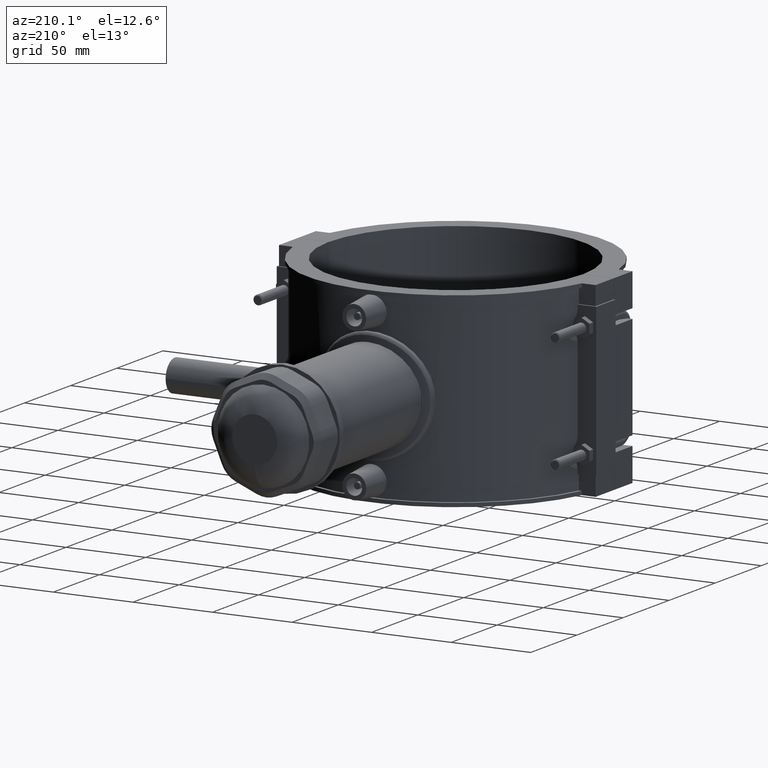
[diagram: clean part render]
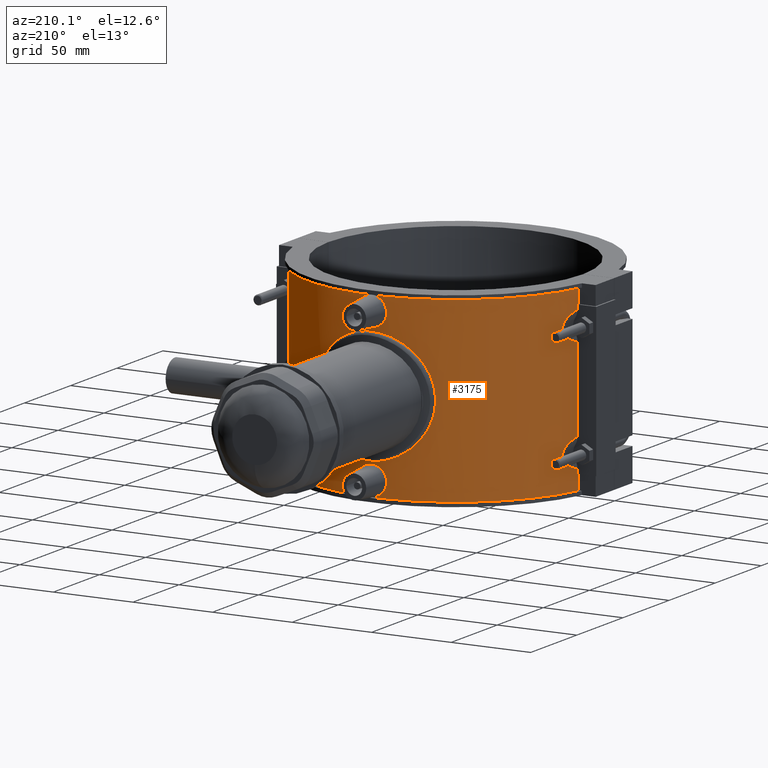
[diagram: same view with one face highlighted and labeled with its STEP entity id]
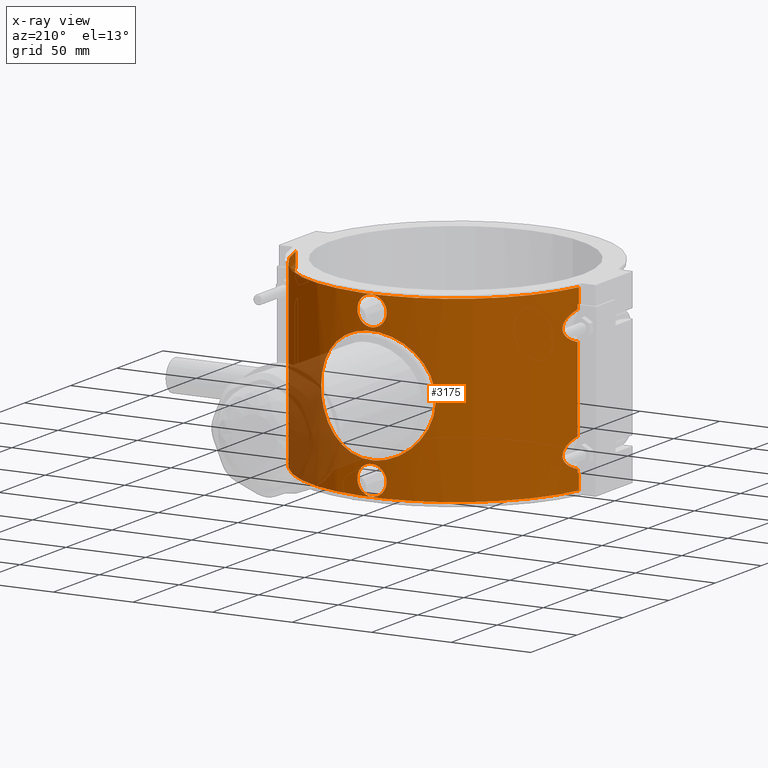
[diagram: x-ray of the same camera — body ghosted, the highlighted face saturated]
A machine part, auxiliary view. The second image highlights one B-rep face of the part: STEP entity #3175.
The next image is the same camera in x-ray: the body ghosted, the highlighted face saturated — about 12% of this face is hidden behind the body in this view.
In plain terms, the highlighted cylindrical surface (partial cylindrical patch) has radius 91.2 mm, axis along (0, 0, 1).
Its self-contained STEP definition (entity closure, byte-faithful):
#62=LINE('',#4548,#345);
#214=LINE('',#5558,#497);
#224=LINE('',#5584,#507);
#225=LINE('',#5585,#508);
#226=LINE('',#5586,#509);
#243=LINE('',#5815,#526);
#246=LINE('',#5819,#529);
#247=LINE('',#5820,#530);
#255=LINE('',#5914,#538);
#256=LINE('',#5916,#539);
#345=VECTOR('',#3576,9.43999999999998);
#497=VECTOR('',#4012,9.43999999999998);
#507=VECTOR('',#4040,2.6837622247576);
#508=VECTOR('',#4041,52.5675244495152);
#509=VECTOR('',#4042,2.6837622247576);
#526=VECTOR('',#4089,2.6837622247576);
#529=VECTOR('',#4092,2.6837622247576);
#530=VECTOR('',#4093,52.5675244495152);
#538=VECTOR('',#4121,9.43999999999998);
#539=VECTOR('',#4124,9.43999999999998);
#760=FACE_BOUND('',#1233,.T.);
#761=FACE_BOUND('',#1234,.T.);
#762=FACE_BOUND('',#1235,.T.);
#833=CIRCLE('',#3397,91.2);
#835=CIRCLE('',#3401,91.2);
#838=CIRCLE('',#3419,91.2);
#839=CIRCLE('',#3421,91.2);
#842=CIRCLE('',#3427,91.2);
#843=CIRCLE('',#3428,91.2);
#1007=FACE_OUTER_BOUND('',#1232,.T.);
#1232=EDGE_LOOP('',(#2711,#2712,#2713,#2714,#2715,#2716,#2717,#2718,#2719,
#2720,#2721,#2722,#2723,#2724,#2725,#2726,#2727,#2728,#2729,#2730));
#1233=EDGE_LOOP('',(#2731));
#1234=EDGE_LOOP('',(#2732));
#1235=EDGE_LOOP('',(#2733));
#1322=B_SPLINE_CURVE_WITH_KNOTS('',3,(#5047,#5048,#5049,#5050,#5051,#5052,
#5053,#5054,#5055,#5056,#5057,#5058,#5059),.UNSPECIFIED.,.F.,.F.,(4,1,1,
1,1,1,1,1,1,1,4),(-3.66790656687898,-3.25082827320278,-2.83374997952657,
-2.41667168585037,-2.20813253901227,-1.99959339217417,-1.89532381875512,
-1.79105424533607,-1.58251509849797,-1.16543680482177,-0.748358511145565),
 .UNSPECIFIED.);
#1334=B_SPLINE_CURVE_WITH_KNOTS('',3,(#5336,#5337,#5338,#5339,#5340,#5341,
#5342,#5343,#5344,#5345,#5346,#5347,#5348,#5349,#5350,#5351,#5352,#5353,
#5354,#5355,#5356,#5357,#5358,#5359,#5360,#5361,#5362,#5363,#5364,#5365,
#5366,#5367,#5368,#5369),.UNSPECIFIED.,.T.,.F.,(4,2,2,2,2,2,2,2,2,2,2,2,
2,2,2,2,4),(0.,0.346065054083076,0.692130108166152,1.03704234345026,1.38195457873437,
1.72686681401849,2.0717790493026,2.41784410338567,2.76390915746875,3.10957379604714,
3.45523843462554,3.80055069679235,4.14586295895917,4.49117522112599,4.8364874832928,
5.1821521218712,5.52781676044959),.UNSPECIFIED.);
#1335=B_SPLINE_CURVE_WITH_KNOTS('',3,(#5390,#5391,#5392,#5393,#5394,#5395,
#5396,#5397,#5398,#5399,#5400,#5401,#5402,#5403,#5404,#5405,#5406,#5407,
#5408,#5409,#5410,#5411,#5412,#5413,#5414,#5415,#5416,#5417,#5418,#5419,
#5420,#5421,#5422,#5423),.UNSPECIFIED.,.T.,.F.,(4,2,2,2,2,2,2,2,2,2,2,2,
2,2,2,2,4),(0.,0.346065054083076,0.692130108166152,1.03704234345026,1.38195457873438,
1.72686681401849,2.0717790493026,2.41784410338567,2.76390915746875,3.10957379604714,
3.45523843462554,3.80055069679235,4.14586295895917,4.49117522112599,4.8364874832928,
5.1821521218712,5.52781676044959),.UNSPECIFIED.);
#1339=B_SPLINE_CURVE_WITH_KNOTS('',3,(#5535,#5536,#5537,#5538,#5539,#5540,
#5541,#5542,#5543,#5544,#5545,#5546,#5547),.UNSPECIFIED.,.F.,.F.,(4,1,1,
1,1,1,1,1,1,1,4),(-3.66752498455638,-3.25044670413885,-2.83336842372132,
-2.41629014330378,-2.20775100309501,-1.99921186288625,-1.89494229278186,
-1.79067272267748,-1.58213358246871,-1.16505530205118,-0.747977021633643),
 .UNSPECIFIED.);
#1343=B_SPLINE_CURVE_WITH_KNOTS('',3,(#5689,#5690,#5691,#5692,#5693,#5694,
#5695,#5696,#5697,#5698,#5699,#5700,#5701),.UNSPECIFIED.,.F.,.F.,(4,1,1,
1,1,1,1,1,1,1,4),(-3.66828220279289,-3.25120389611031,-2.83412558942772,
-2.62558643608643,-2.52131685941578,-2.41704728274514,-2.20850812940385,
-1.99996897606255,-1.58289066937997,-1.16581236269738,-0.748734056014795),
 .UNSPECIFIED.);
#1347=B_SPLINE_CURVE_WITH_KNOTS('',3,(#5786,#5787,#5788,#5789,#5790,#5791,
#5792,#5793,#5794,#5795,#5796,#5797,#5798),.UNSPECIFIED.,.F.,.F.,(4,1,1,
1,1,1,1,1,1,1,4),(-3.66828220203314,-3.25120389535557,-2.834125588678,-2.41704728200043,
-2.20850812866164,-1.99996897532286,-1.89569939865347,-1.79142982198407,
-1.58289066864529,-1.16581236196772,-0.74873405529015),.UNSPECIFIED.);
#1349=B_SPLINE_CURVE_WITH_KNOTS('',3,(#5918,#5919,#5920,#5921,#5922,#5923,
#5924,#5925,#5926,#5927,#5928,#5929,#5930,#5931,#5932,#5933,#5934,#5935,
#5936,#5937,#5938,#5939,#5940,#5941,#5942,#5943,#5944,#5945,#5946,#5947,
#5948,#5949,#5950,#5951,#5952,#5953,#5954,#5955,#5956,#5957,#5958,#5959,
#5960,#5961,#5962,#5963,#5964,#5965,#5966,#5967,#5968,#5969,#5970,#5971,
#5972,#5973,#5974,#5975,#5976,#5977,#5978,#5979,#5980,#5981,#5982,#5983),
 .UNSPECIFIED.,.T.,.F.,(4,2,2,2,2,2,2,2,2,2,2,2,2,2,2,2,2,2,2,2,2,2,2,2,
2,2,2,2,2,2,2,2,4),(0.,0.686545125668625,1.37309025133725,2.05963537700587,
2.7461805026745,3.43206983416835,4.1179591656622,4.80384849715604,5.48973782864989,
6.17562716014374,6.86151649163759,7.54740582313144,8.23329515462529,8.91984028029391,
9.60638540596253,10.2929305316312,10.9794756572998,11.6660207829684,12.352565908637,
13.0391110343057,13.7256561599743,14.4115454914681,15.097434822962,15.7833241544558,
16.4692134859497,17.1551028174435,17.8409921489374,18.5268814804312,19.2127708119251,
19.8993159375937,20.5858610632623,21.2724061889309,21.9589513145996),
 .UNSPECIFIED.);
#1381=VERTEX_POINT('',#4545);
#1382=VERTEX_POINT('',#4547);
#1475=VERTEX_POINT('',#5038);
#1476=VERTEX_POINT('',#5046);
#1528=VERTEX_POINT('',#5335);
#1535=VERTEX_POINT('',#5389);
#1543=VERTEX_POINT('',#5506);
#1546=VERTEX_POINT('',#5528);
#1549=VERTEX_POINT('',#5555);
#1550=VERTEX_POINT('',#5557);
#1553=VERTEX_POINT('',#5566);
#1556=VERTEX_POINT('',#5577);
#1557=VERTEX_POINT('',#5579);
#1562=VERTEX_POINT('',#5660);
#1565=VERTEX_POINT('',#5682);
#1566=VERTEX_POINT('',#5756);
#1569=VERTEX_POINT('',#5779);
#1573=VERTEX_POINT('',#5814);
#1574=VERTEX_POINT('',#5817);
#1575=VERTEX_POINT('',#5822);
#1583=VERTEX_POINT('',#5911);
#1584=VERTEX_POINT('',#5913);
#1585=VERTEX_POINT('',#5917);
#1683=EDGE_CURVE('',#1381,#1382,#62,.T.);
#1809=EDGE_CURVE('',#1475,#1476,#1322,.T.);
#1889=EDGE_CURVE('',#1528,#1528,#1334,.T.);
#1896=EDGE_CURVE('',#1535,#1535,#1335,.T.);
#1913=EDGE_CURVE('',#1546,#1543,#1339,.T.);
#1918=EDGE_CURVE('',#1550,#1549,#214,.T.);
#1923=EDGE_CURVE('',#1549,#1553,#833,.T.);
#1929=EDGE_CURVE('',#1557,#1556,#835,.T.);
#1932=EDGE_CURVE('',#1475,#1557,#224,.T.);
#1933=EDGE_CURVE('',#1546,#1476,#225,.T.);
#1934=EDGE_CURVE('',#1553,#1543,#226,.T.);
#1948=EDGE_CURVE('',#1565,#1562,#1343,.T.);
#1953=EDGE_CURVE('',#1569,#1566,#1347,.T.);
#1961=EDGE_CURVE('',#1573,#1566,#243,.T.);
#1964=EDGE_CURVE('',#1565,#1574,#246,.T.);
#1965=EDGE_CURVE('',#1569,#1562,#247,.T.);
#1966=EDGE_CURVE('',#1574,#1575,#838,.T.);
#1968=EDGE_CURVE('',#1381,#1573,#839,.T.);
#1978=EDGE_CURVE('',#1583,#1382,#842,.T.);
#1979=EDGE_CURVE('',#1584,#1575,#255,.T.);
#1980=EDGE_CURVE('',#1584,#1550,#843,.T.);
#1981=EDGE_CURVE('',#1556,#1583,#256,.T.);
#1982=EDGE_CURVE('',#1585,#1585,#1349,.T.);
#2711=ORIENTED_EDGE('',*,*,#1978,.T.);
#2712=ORIENTED_EDGE('',*,*,#1683,.F.);
#2713=ORIENTED_EDGE('',*,*,#1968,.T.);
#2714=ORIENTED_EDGE('',*,*,#1961,.T.);
#2715=ORIENTED_EDGE('',*,*,#1953,.F.);
#2716=ORIENTED_EDGE('',*,*,#1965,.T.);
#2717=ORIENTED_EDGE('',*,*,#1948,.F.);
#2718=ORIENTED_EDGE('',*,*,#1964,.T.);
#2719=ORIENTED_EDGE('',*,*,#1966,.T.);
#2720=ORIENTED_EDGE('',*,*,#1979,.F.);
#2721=ORIENTED_EDGE('',*,*,#1980,.T.);
#2722=ORIENTED_EDGE('',*,*,#1918,.T.);
#2723=ORIENTED_EDGE('',*,*,#1923,.T.);
#2724=ORIENTED_EDGE('',*,*,#1934,.T.);
#2725=ORIENTED_EDGE('',*,*,#1913,.F.);
#2726=ORIENTED_EDGE('',*,*,#1933,.T.);
#2727=ORIENTED_EDGE('',*,*,#1809,.F.);
#2728=ORIENTED_EDGE('',*,*,#1932,.T.);
#2729=ORIENTED_EDGE('',*,*,#1929,.T.);
#2730=ORIENTED_EDGE('',*,*,#1981,.T.);
#2731=ORIENTED_EDGE('',*,*,#1982,.T.);
#2732=ORIENTED_EDGE('',*,*,#1889,.T.);
#2733=ORIENTED_EDGE('',*,*,#1896,.T.);
#3032=CYLINDRICAL_SURFACE('',#3426,91.2);
#3175=ADVANCED_FACE('',(#1007,#760,#761,#762),#3032,.T.);
#3397=AXIS2_PLACEMENT_3D('',#5568,#4022,#4023);
#3401=AXIS2_PLACEMENT_3D('',#5580,#4034,#4035);
#3419=AXIS2_PLACEMENT_3D('',#5823,#4096,#4097);
#3421=AXIS2_PLACEMENT_3D('',#5826,#4101,#4102);
#3426=AXIS2_PLACEMENT_3D('',#5910,#4117,#4118);
#3427=AXIS2_PLACEMENT_3D('',#5912,#4119,#4120);
#3428=AXIS2_PLACEMENT_3D('',#5915,#4122,#4123);
#3576=DIRECTION('',(0.,0.,-1.));
#4012=DIRECTION('',(0.,0.,-1.));
#4022=DIRECTION('center_axis',(0.,0.,1.));
#4023=DIRECTION('ref_axis',(1.,0.,0.));
#4034=DIRECTION('center_axis',(0.,0.,-1.));
#4035=DIRECTION('ref_axis',(1.,0.,0.));
#4040=DIRECTION('',(0.,0.,-1.));
#4041=DIRECTION('',(0.,0.,-1.));
#4042=DIRECTION('',(0.,0.,-1.));
#4089=DIRECTION('',(0.,0.,1.));
#4092=DIRECTION('',(0.,0.,1.));
#4093=DIRECTION('',(0.,0.,1.));
#4096=DIRECTION('center_axis',(0.,0.,1.));
#4097=DIRECTION('ref_axis',(1.,0.,0.));
#4101=DIRECTION('center_axis',(0.,0.,-1.));
#4102=DIRECTION('ref_axis',(1.,0.,0.));
#4117=DIRECTION('center_axis',(0.,0.,1.));
#4118=DIRECTION('ref_axis',(1.,0.,0.));
#4119=DIRECTION('center_axis',(0.,0.,1.));
#4120=DIRECTION('ref_axis',(1.,0.,0.));
#4121=DIRECTION('',(0.,0.,-1.));
#4122=DIRECTION('center_axis',(0.,0.,-1.));
#4123=DIRECTION('ref_axis',(1.,0.,0.));
#4124=DIRECTION('',(0.,0.,-1.));
#4545=CARTESIAN_POINT('',(-88.9799977523039,20.0000000000001,-47.2));
#4547=CARTESIAN_POINT('',(-88.9799977523038,20.,-56.64));
#4548=CARTESIAN_POINT('',(-88.9799977523039,20.,0.));
#5038=CARTESIAN_POINT('',(88.7493098564717,20.9999999999999,-44.5162377752424));
#5046=CARTESIAN_POINT('',(88.7493098564717,20.9999999999999,-26.2837622247576));
#5047=CARTESIAN_POINT('Ctrl Pts',(88.7493098564716,20.9999999999998,-44.5162377752424));
#5048=CARTESIAN_POINT('Ctrl Pts',(88.4149610985497,22.4130105484257,-44.096805594623));
#5049=CARTESIAN_POINT('Ctrl Pts',(87.6880282422707,25.1778863008158,-43.0979999331056));
#5050=CARTESIAN_POINT('Ctrl Pts',(86.5191529875693,28.9202770076708,-40.9324876111118));
#5051=CARTESIAN_POINT('Ctrl Pts',(85.6624056223097,31.3024402068319,-38.1834840623287));
#5052=CARTESIAN_POINT('Ctrl Pts',(85.4450161242982,31.8828233802715,-35.3965843784854));
#5053=CARTESIAN_POINT('Ctrl Pts',(85.5804054869423,31.5211844154478,-33.6649494543955));
#5054=CARTESIAN_POINT('Ctrl Pts',(85.808657968559,30.8938156951858,-32.4114546738169));
#5055=CARTESIAN_POINT('Ctrl Pts',(86.0964993859236,30.0864759569152,-31.2576986115477));
#5056=CARTESIAN_POINT('Ctrl Pts',(86.7095182786285,28.3065864901469,-29.5140871907144));
#5057=CARTESIAN_POINT('Ctrl Pts',(87.6915419574416,25.1700257100879,-27.6977673293898));
#5058=CARTESIAN_POINT('Ctrl Pts',(88.4149610985496,22.4130105484257,-26.703194405377));
#5059=CARTESIAN_POINT('Ctrl Pts',(88.7493098564716,20.9999999999998,-26.2837622247577));
#5335=CARTESIAN_POINT('',(9.18535871939005,90.7362616884569,-47.2));
#5336=CARTESIAN_POINT('Ctrl Pts',(9.18535871939005,90.7362616884569,-47.2));
#5337=CARTESIAN_POINT('Ctrl Pts',(9.18535871939005,90.7362616884569,-46.0464498197231));
#5338=CARTESIAN_POINT('Ctrl Pts',(8.95271060001911,90.7607479368476,-44.8172530720308));
#5339=CARTESIAN_POINT('Ctrl Pts',(8.00941505919708,90.8488506341557,-42.5592810057039));
#5340=CARTESIAN_POINT('Ctrl Pts',(7.29884239188916,90.9111644020812,-41.5304238181904));
#5341=CARTESIAN_POINT('Ctrl Pts',(5.66508973086934,91.0275518498036,-39.9110715030919));
#5342=CARTESIAN_POINT('Ctrl Pts',(4.63386079845111,91.0892061742376,-39.2111731607874));
#5343=CARTESIAN_POINT('Ctrl Pts',(2.37619622321046,91.1760376342106,-38.2832359769919));
#5344=CARTESIAN_POINT('Ctrl Pts',(1.14970745094704,91.2,-38.0552131257126));
#5345=CARTESIAN_POINT('Ctrl Pts',(-1.14970745094704,91.2,-38.0552131257126));
#5346=CARTESIAN_POINT('Ctrl Pts',(-2.37619622321046,91.1760376342106,-38.2832359769919));
#5347=CARTESIAN_POINT('Ctrl Pts',(-4.63386079845111,91.0892061742376,-39.2111731607874));
#5348=CARTESIAN_POINT('Ctrl Pts',(-5.66508973086934,91.0275518498036,-39.9110715030919));
#5349=CARTESIAN_POINT('Ctrl Pts',(-7.29884239188916,90.9111644020812,-41.5304238181904));
#5350=CARTESIAN_POINT('Ctrl Pts',(-8.00941505919708,90.8488506341557,-42.5592810057039));
#5351=CARTESIAN_POINT('Ctrl Pts',(-8.95271060001911,90.7607479368476,-44.8172530720308));
#5352=CARTESIAN_POINT('Ctrl Pts',(-9.18535871939005,90.7362616884569,-46.0464498197231));
#5353=CARTESIAN_POINT('Ctrl Pts',(-9.18535871939005,90.7362616884569,-48.352215461928));
#5354=CARTESIAN_POINT('Ctrl Pts',(-8.95324403729757,90.7606900825598,-49.5800841296841));
#5355=CARTESIAN_POINT('Ctrl Pts',(-8.01194907454096,90.8486219657987,-51.8360347071785));
#5356=CARTESIAN_POINT('Ctrl Pts',(-7.30284350220761,90.9108281977478,-52.864198165275));
#5357=CARTESIAN_POINT('Ctrl Pts',(-5.67049896938736,91.0272172622692,-54.4849679392758));
#5358=CARTESIAN_POINT('Ctrl Pts',(-4.63856343325106,91.0889794944252,-55.1863216568089));
#5359=CARTESIAN_POINT('Ctrl Pts',(-2.37886109944089,91.1759808049367,-56.1162391747394));
#5360=CARTESIAN_POINT('Ctrl Pts',(-1.15104087388939,91.2,-56.3447868742874));
#5361=CARTESIAN_POINT('Ctrl Pts',(1.15104087388939,91.2,-56.3447868742874));
#5362=CARTESIAN_POINT('Ctrl Pts',(2.37886109944089,91.1759808049367,-56.1162391747394));
#5363=CARTESIAN_POINT('Ctrl Pts',(4.63856343325106,91.0889794944252,-55.1863216568089));
#5364=CARTESIAN_POINT('Ctrl Pts',(5.67049896938736,91.0272172622692,-54.4849679392758));
#5365=CARTESIAN_POINT('Ctrl Pts',(7.30284350220761,90.9108281977478,-52.864198165275));
#5366=CARTESIAN_POINT('Ctrl Pts',(8.01194907454096,90.8486219657987,-51.8360347071784));
#5367=CARTESIAN_POINT('Ctrl Pts',(8.95324403729757,90.7606900825598,-49.5800841296841));
#5368=CARTESIAN_POINT('Ctrl Pts',(9.18535871939005,90.7362616884569,-48.352215461928));
#5369=CARTESIAN_POINT('Ctrl Pts',(9.18535871939005,90.7362616884569,-47.2));
#5389=CARTESIAN_POINT('',(9.18535871939005,90.7362616884569,47.2));
#5390=CARTESIAN_POINT('Ctrl Pts',(-9.18535871939005,90.7362616884569,47.2));
#5391=CARTESIAN_POINT('Ctrl Pts',(-9.18535871939005,90.7362616884569,46.0464498197231));
#5392=CARTESIAN_POINT('Ctrl Pts',(-8.95271060001911,90.7607479368476,44.8172530720308));
#5393=CARTESIAN_POINT('Ctrl Pts',(-8.00941505919708,90.8488506341557,42.5592810057039));
#5394=CARTESIAN_POINT('Ctrl Pts',(-7.29884239188916,90.9111644020812,41.5304238181904));
#5395=CARTESIAN_POINT('Ctrl Pts',(-5.66508973086935,91.0275518498036,39.9110715030919));
#5396=CARTESIAN_POINT('Ctrl Pts',(-4.63386079845111,91.0892061742376,39.2111731607874));
#5397=CARTESIAN_POINT('Ctrl Pts',(-2.37619622321046,91.1760376342106,38.2832359769919));
#5398=CARTESIAN_POINT('Ctrl Pts',(-1.14970745094704,91.2,38.0552131257126));
#5399=CARTESIAN_POINT('Ctrl Pts',(1.14970745094704,91.2,38.0552131257126));
#5400=CARTESIAN_POINT('Ctrl Pts',(2.37619622321046,91.1760376342106,38.2832359769919));
#5401=CARTESIAN_POINT('Ctrl Pts',(4.63386079845112,91.0892061742376,39.2111731607874));
#5402=CARTESIAN_POINT('Ctrl Pts',(5.66508973086935,91.0275518498036,39.9110715030919));
#5403=CARTESIAN_POINT('Ctrl Pts',(7.29884239188916,90.9111644020812,41.5304238181904));
#5404=CARTESIAN_POINT('Ctrl Pts',(8.00941505919708,90.8488506341557,42.5592810057039));
#5405=CARTESIAN_POINT('Ctrl Pts',(8.95271060001911,90.7607479368476,44.8172530720308));
#5406=CARTESIAN_POINT('Ctrl Pts',(9.18535871939005,90.7362616884569,46.0464498197231));
#5407=CARTESIAN_POINT('Ctrl Pts',(9.18535871939005,90.7362616884569,48.352215461928));
#5408=CARTESIAN_POINT('Ctrl Pts',(8.95324403729757,90.7606900825598,49.5800841296841));
#5409=CARTESIAN_POINT('Ctrl Pts',(8.01194907454095,90.8486219657987,51.8360347071784));
#5410=CARTESIAN_POINT('Ctrl Pts',(7.30284350220761,90.9108281977478,52.864198165275));
#5411=CARTESIAN_POINT('Ctrl Pts',(5.67049896938736,91.0272172622692,54.4849679392758));
#5412=CARTESIAN_POINT('Ctrl Pts',(4.63856343325106,91.0889794944252,55.1863216568089));
#5413=CARTESIAN_POINT('Ctrl Pts',(2.3788610994409,91.1759808049367,56.1162391747394));
#5414=CARTESIAN_POINT('Ctrl Pts',(1.15104087388939,91.2,56.3447868742874));
#5415=CARTESIAN_POINT('Ctrl Pts',(-1.15104087388938,91.2,56.3447868742874));
#5416=CARTESIAN_POINT('Ctrl Pts',(-2.37886109944089,91.1759808049367,56.1162391747394));
#5417=CARTESIAN_POINT('Ctrl Pts',(-4.63856343325106,91.0889794944252,55.1863216568089));
#5418=CARTESIAN_POINT('Ctrl Pts',(-5.67049896938736,91.0272172622692,54.4849679392758));
#5419=CARTESIAN_POINT('Ctrl Pts',(-7.30284350220761,90.9108281977478,52.864198165275));
#5420=CARTESIAN_POINT('Ctrl Pts',(-8.01194907454096,90.8486219657987,51.8360347071784));
#5421=CARTESIAN_POINT('Ctrl Pts',(-8.95324403729757,90.7606900825598,49.5800841296841));
#5422=CARTESIAN_POINT('Ctrl Pts',(-9.18535871939005,90.7362616884569,48.352215461928));
#5423=CARTESIAN_POINT('Ctrl Pts',(-9.18535871939005,90.7362616884569,47.2));
#5506=CARTESIAN_POINT('',(88.7493098564717,20.9999999999999,44.5162377752424));
#5528=CARTESIAN_POINT('',(88.7493098564717,20.9999999999999,26.2837622247576));
#5535=CARTESIAN_POINT('Ctrl Pts',(88.7493098564716,20.9999999999998,26.2837622247576));
#5536=CARTESIAN_POINT('Ctrl Pts',(88.4149611650864,22.4130102672308,26.7031943219082));
#5537=CARTESIAN_POINT('Ctrl Pts',(87.6880281127537,25.1778867747982,27.7020002347816));
#5538=CARTESIAN_POINT('Ctrl Pts',(86.5191529289145,28.9202771409652,29.8675125804049));
#5539=CARTESIAN_POINT('Ctrl Pts',(85.6624055404448,31.3024404085867,32.6165161958967));
#5540=CARTESIAN_POINT('Ctrl Pts',(85.4450160933639,31.8828234478234,35.4034157393931));
#5541=CARTESIAN_POINT('Ctrl Pts',(85.5804054544134,31.5211844964487,37.1350505984411));
#5542=CARTESIAN_POINT('Ctrl Pts',(85.8086579307241,30.8938157915859,38.3885453381319));
#5543=CARTESIAN_POINT('Ctrl Pts',(86.0964993346629,30.0864760996624,39.5423013659968));
#5544=CARTESIAN_POINT('Ctrl Pts',(86.7095182095769,28.3065866754566,41.2859127627844));
#5545=CARTESIAN_POINT('Ctrl Pts',(87.6915418476083,25.1700261338185,43.1022325374696));
#5546=CARTESIAN_POINT('Ctrl Pts',(88.4149611650864,22.4130102672308,44.0968056780918));
#5547=CARTESIAN_POINT('Ctrl Pts',(88.7493098564716,20.9999999999998,44.5162377752424));
#5555=CARTESIAN_POINT('',(88.9799977523039,20.0000000000001,47.2));
#5557=CARTESIAN_POINT('',(88.9799977523039,20.,56.64));
#5558=CARTESIAN_POINT('',(88.9799977523039,20.,0.));
#5566=CARTESIAN_POINT('',(88.7493098564715,21.0000000000001,47.2));
#5568=CARTESIAN_POINT('Origin',(0.,0.,47.2));
#5577=CARTESIAN_POINT('',(88.9799977523039,20.0000000000001,-47.2));
#5579=CARTESIAN_POINT('',(88.7493098564715,21.0000000000001,-47.2));
#5580=CARTESIAN_POINT('Origin',(0.,0.,-47.2));
#5584=CARTESIAN_POINT('',(88.7493098564715,21.0000000000001,0.));
#5585=CARTESIAN_POINT('',(88.7493098564715,21.0000000000001,0.));
#5586=CARTESIAN_POINT('',(88.7493098564715,21.0000000000001,0.));
#5660=CARTESIAN_POINT('',(-88.7493098564717,20.9999999999999,26.2837622247576));
#5682=CARTESIAN_POINT('',(-88.7493098564717,20.9999999999999,44.5162377752424));
#5689=CARTESIAN_POINT('Ctrl Pts',(-88.7493098564716,20.9999999999998,44.5162377752423));
#5690=CARTESIAN_POINT('Ctrl Pts',(-88.4149610330286,22.4130108253278,44.0968055124285));
#5691=CARTESIAN_POINT('Ctrl Pts',(-87.6915420860673,25.1700252569293,43.1022328863481));
#5692=CARTESIAN_POINT('Ctrl Pts',(-86.7095183161227,28.3065863803371,41.2859130197395));
#5693=CARTESIAN_POINT('Ctrl Pts',(-86.0964994057748,30.0864758920522,39.5423015932371));
#5694=CARTESIAN_POINT('Ctrl Pts',(-85.8086579672407,30.893815693674,38.3885455088886));
#5695=CARTESIAN_POINT('Ctrl Pts',(-85.5804054683343,31.5211844573247,37.1350507091815));
#5696=CARTESIAN_POINT('Ctrl Pts',(-85.4450160840051,31.8828234820182,35.4034157396783));
#5697=CARTESIAN_POINT('Ctrl Pts',(-85.6624055693633,31.3024403212867,32.6165160158946));
#5698=CARTESIAN_POINT('Ctrl Pts',(-86.5191530161485,28.9202769511961,29.8675123198506));
#5699=CARTESIAN_POINT('Ctrl Pts',(-87.6880283530886,25.1778858777117,27.7019998930204));
#5700=CARTESIAN_POINT('Ctrl Pts',(-88.4149610330286,22.4130108253279,26.7031944875715));
#5701=CARTESIAN_POINT('Ctrl Pts',(-88.7493098564716,20.9999999999998,26.2837622247576));
#5756=CARTESIAN_POINT('',(-88.7493098564717,20.9999999999999,-44.5162377752424));
#5779=CARTESIAN_POINT('',(-88.7493098564717,20.9999999999999,-26.2837622247576));
#5786=CARTESIAN_POINT('Ctrl Pts',(-88.7493098564716,20.9999999999998,-26.2837622247576));
#5787=CARTESIAN_POINT('Ctrl Pts',(-88.4149610321497,22.4130108290423,-26.7031944886741));
#5788=CARTESIAN_POINT('Ctrl Pts',(-87.6880283524837,25.1778858795364,-27.7019998941576));
#5789=CARTESIAN_POINT('Ctrl Pts',(-86.5191530163603,28.9202769505524,-29.8675123195208));
#5790=CARTESIAN_POINT('Ctrl Pts',(-85.6624055693339,31.302440321372,-32.6165160159839));
#5791=CARTESIAN_POINT('Ctrl Pts',(-85.4450160840425,31.8828234819035,-35.4034157396157));
#5792=CARTESIAN_POINT('Ctrl Pts',(-85.5804054683402,31.5211844573056,-37.1350507092045));
#5793=CARTESIAN_POINT('Ctrl Pts',(-85.8086579672526,30.8938156936346,-38.3885455088592));
#5794=CARTESIAN_POINT('Ctrl Pts',(-86.0964994057414,30.0864758921458,-39.5423015931259));
#5795=CARTESIAN_POINT('Ctrl Pts',(-86.7095183162258,28.3065863800305,-41.2859130199106));
#5796=CARTESIAN_POINT('Ctrl Pts',(-87.691542085464,25.1700252587432,-43.1022328851723));
#5797=CARTESIAN_POINT('Ctrl Pts',(-88.4149610321497,22.4130108290423,-44.096805511326));
#5798=CARTESIAN_POINT('Ctrl Pts',(-88.7493098564716,20.9999999999998,-44.5162377752424));
#5814=CARTESIAN_POINT('',(-88.7493098564715,21.0000000000001,-47.2));
#5815=CARTESIAN_POINT('',(-88.7493098564715,21.0000000000001,0.));
#5817=CARTESIAN_POINT('',(-88.7493098564715,21.0000000000001,47.2));
#5819=CARTESIAN_POINT('',(-88.7493098564715,21.0000000000001,0.));
#5820=CARTESIAN_POINT('',(-88.7493098564715,21.0000000000001,0.));
#5822=CARTESIAN_POINT('',(-88.9799977523039,20.0000000000001,47.2));
#5823=CARTESIAN_POINT('Origin',(0.,0.,47.2));
#5826=CARTESIAN_POINT('Origin',(0.,0.,-47.2));
#5910=CARTESIAN_POINT('Origin',(0.,0.,0.));
#5911=CARTESIAN_POINT('',(88.9799977523039,20.,-56.64));
#5912=CARTESIAN_POINT('Origin',(0.,0.,-56.64));
#5913=CARTESIAN_POINT('',(-88.9799977523038,20.,56.64));
#5914=CARTESIAN_POINT('',(-88.9799977523039,20.,0.));
#5915=CARTESIAN_POINT('Origin',(0.,0.,56.64));
#5916=CARTESIAN_POINT('',(88.9799977523039,20.,0.));
#5917=CARTESIAN_POINT('',(36.,83.7940332004612,0.));
#5918=CARTESIAN_POINT('Ctrl Pts',(36.,83.7940332004612,0.));
#5919=CARTESIAN_POINT('Ctrl Pts',(36.,83.7940332004612,2.28848375222875));
#5920=CARTESIAN_POINT('Ctrl Pts',(35.7782887978466,83.8904342023092,4.64588694301195));
#5921=CARTESIAN_POINT('Ctrl Pts',(34.8546532313024,84.2783723591541,9.31790553277572));
#5922=CARTESIAN_POINT('Ctrl Pts',(34.1530286011665,84.5694446341323,11.6326187719137));
#5923=CARTESIAN_POINT('Ctrl Pts',(32.3089969863221,85.2909661590028,16.0585197891704));
#5924=CARTESIAN_POINT('Ctrl Pts',(31.165128157779,85.7211596850742,18.1737058126692));
#5925=CARTESIAN_POINT('Ctrl Pts',(28.5312190227312,86.6334344901436,22.0798174282098));
#5926=CARTESIAN_POINT('Ctrl Pts',(27.0409117744509,87.1146015822262,23.8707764709805));
#5927=CARTESIAN_POINT('Ctrl Pts',(23.8722905420791,88.0356363061712,27.0393977033523));
#5928=CARTESIAN_POINT('Ctrl Pts',(22.0820581770992,88.5089443739233,28.5295125553873));
#5929=CARTESIAN_POINT('Ctrl Pts',(18.175570321976,89.3929481051351,31.1640662251688));
#5930=CARTESIAN_POINT('Ctrl Pts',(16.0592786454413,89.8028802983963,32.3087075032088));
#5931=CARTESIAN_POINT('Ctrl Pts',(11.6311420538677,90.4830054539145,34.1536171739742));
#5932=CARTESIAN_POINT('Ctrl Pts',(9.31533034190696,90.7532620314227,34.8553518612118));
#5933=CARTESIAN_POINT('Ctrl Pts',(4.64294395213267,91.1118709070611,35.7786808619193));
#5934=CARTESIAN_POINT('Ctrl Pts',(2.28629777164616,91.2,36.));
#5935=CARTESIAN_POINT('Ctrl Pts',(-2.28629777164616,91.2,36.));
#5936=CARTESIAN_POINT('Ctrl Pts',(-4.64294395213267,91.1118709070611,35.7786808619193));
#5937=CARTESIAN_POINT('Ctrl Pts',(-9.31533034190696,90.7532620314227,34.8553518612118));
#5938=CARTESIAN_POINT('Ctrl Pts',(-11.6311420538677,90.4830054539146,34.1536171739742));
#5939=CARTESIAN_POINT('Ctrl Pts',(-16.0592786454413,89.8028802983963,32.3087075032088));
#5940=CARTESIAN_POINT('Ctrl Pts',(-18.175570321976,89.3929481051351,31.1640662251688));
#5941=CARTESIAN_POINT('Ctrl Pts',(-22.0820581770992,88.5089443739233,28.5295125553873));
#5942=CARTESIAN_POINT('Ctrl Pts',(-23.8722905420791,88.0356363061712,27.0393977033523));
#5943=CARTESIAN_POINT('Ctrl Pts',(-27.0409117744509,87.1146015822262,23.8707764709805));
#5944=CARTESIAN_POINT('Ctrl Pts',(-28.5312190227312,86.6334344901436,22.0798174282098));
#5945=CARTESIAN_POINT('Ctrl Pts',(-31.165128157779,85.7211596850742,18.1737058126692));
#5946=CARTESIAN_POINT('Ctrl Pts',(-32.308996986322,85.2909661590028,16.0585197891704));
#5947=CARTESIAN_POINT('Ctrl Pts',(-34.1530286011665,84.5694446341323,11.6326187719137));
#5948=CARTESIAN_POINT('Ctrl Pts',(-34.8546532313024,84.2783723591541,9.31790553277572));
#5949=CARTESIAN_POINT('Ctrl Pts',(-35.7782887978466,83.8904342023092,4.64588694301194));
#5950=CARTESIAN_POINT('Ctrl Pts',(-36.,83.7940332004612,2.28848375222875));
#5951=CARTESIAN_POINT('Ctrl Pts',(-36.,83.7940332004612,-2.28848375222875));
#5952=CARTESIAN_POINT('Ctrl Pts',(-35.7782887978466,83.8904342023092,-4.64588694301195));
#5953=CARTESIAN_POINT('Ctrl Pts',(-34.8546532313024,84.2783723591541,-9.31790553277572));
#5954=CARTESIAN_POINT('Ctrl Pts',(-34.1530286011665,84.5694446341323,-11.6326187719137));
#5955=CARTESIAN_POINT('Ctrl Pts',(-32.3089969863221,85.2909661590028,-16.0585197891704));
#5956=CARTESIAN_POINT('Ctrl Pts',(-31.165128157779,85.7211596850742,-18.1737058126692));
#5957=CARTESIAN_POINT('Ctrl Pts',(-28.5312190227312,86.6334344901436,-22.0798174282098));
#5958=CARTESIAN_POINT('Ctrl Pts',(-27.0409117744509,87.1146015822262,-23.8707764709805));
#5959=CARTESIAN_POINT('Ctrl Pts',(-23.8722905420791,88.0356363061712,-27.0393977033523));
#5960=CARTESIAN_POINT('Ctrl Pts',(-22.0820581770992,88.5089443739233,-28.5295125553873));
#5961=CARTESIAN_POINT('Ctrl Pts',(-18.175570321976,89.3929481051351,-31.1640662251687));
#5962=CARTESIAN_POINT('Ctrl Pts',(-16.0592786454413,89.8028802983963,-32.3087075032088));
#5963=CARTESIAN_POINT('Ctrl Pts',(-11.6311420538677,90.4830054539145,-34.1536171739742));
#5964=CARTESIAN_POINT('Ctrl Pts',(-9.31533034190696,90.7532620314227,-34.8553518612118));
#5965=CARTESIAN_POINT('Ctrl Pts',(-4.64294395213267,91.1118709070611,-35.7786808619193));
#5966=CARTESIAN_POINT('Ctrl Pts',(-2.28629777164616,91.2,-36.));
#5967=CARTESIAN_POINT('Ctrl Pts',(2.28629777164615,91.2,-36.));
#5968=CARTESIAN_POINT('Ctrl Pts',(4.64294395213266,91.1118709070611,-35.7786808619193));
#5969=CARTESIAN_POINT('Ctrl Pts',(9.31533034190694,90.7532620314227,-34.8553518612118));
#5970=CARTESIAN_POINT('Ctrl Pts',(11.6311420538677,90.4830054539146,-34.1536171739742));
#5971=CARTESIAN_POINT('Ctrl Pts',(16.0592786454413,89.8028802983963,-32.3087075032089));
#5972=CARTESIAN_POINT('Ctrl Pts',(18.1755703219759,89.3929481051352,-31.1640662251688));
#5973=CARTESIAN_POINT('Ctrl Pts',(22.0820581770992,88.5089443739233,-28.5295125553873));
#5974=CARTESIAN_POINT('Ctrl Pts',(23.8722905420791,88.0356363061712,-27.0393977033523));
#5975=CARTESIAN_POINT('Ctrl Pts',(27.0409117744509,87.1146015822262,-23.8707764709805));
#5976=CARTESIAN_POINT('Ctrl Pts',(28.5312190227312,86.6334344901436,-22.0798174282098));
#5977=CARTESIAN_POINT('Ctrl Pts',(31.165128157779,85.7211596850742,-18.1737058126692));
#5978=CARTESIAN_POINT('Ctrl Pts',(32.308996986322,85.2909661590028,-16.0585197891704));
#5979=CARTESIAN_POINT('Ctrl Pts',(34.1530286011665,84.5694446341323,-11.6326187719137));
#5980=CARTESIAN_POINT('Ctrl Pts',(34.8546532313024,84.2783723591541,-9.31790553277574));
#5981=CARTESIAN_POINT('Ctrl Pts',(35.7782887978466,83.8904342023092,-4.64588694301195));
#5982=CARTESIAN_POINT('Ctrl Pts',(36.,83.7940332004612,-2.28848375222875));
#5983=CARTESIAN_POINT('Ctrl Pts',(36.,83.7940332004612,2.22044604925031E-15));